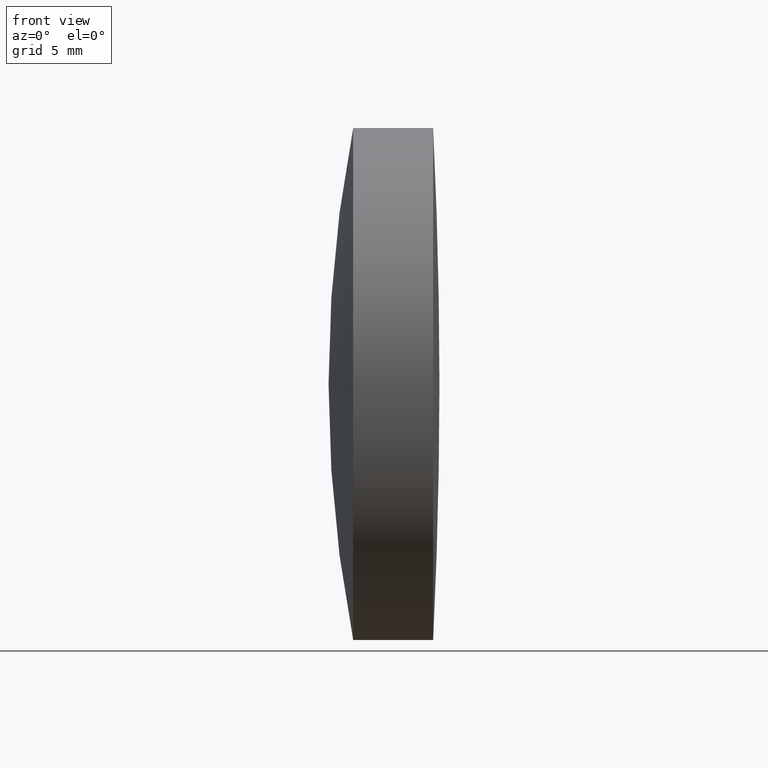
[diagram: clean part render]
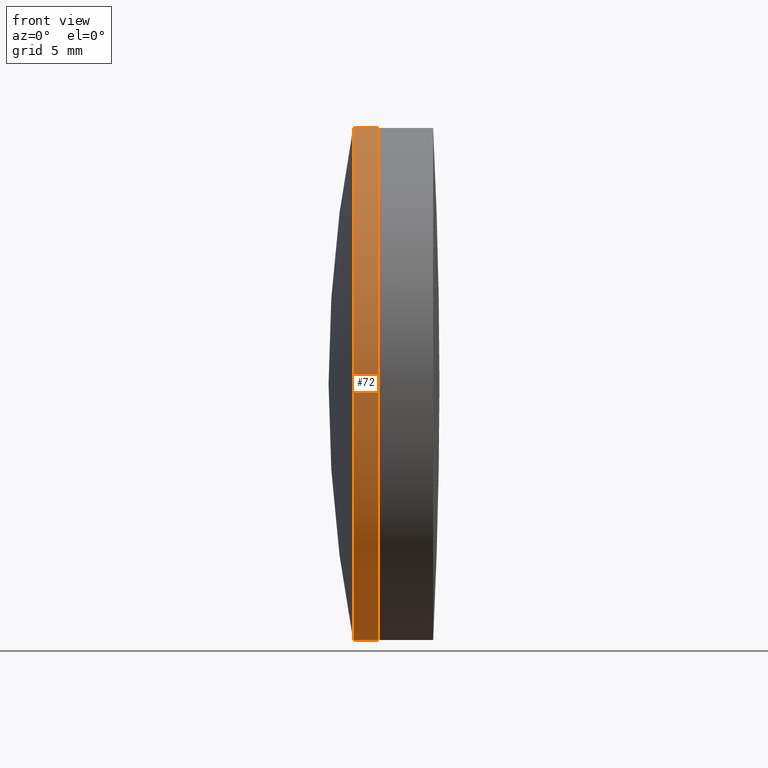
[diagram: same view with one face highlighted and labeled with its STEP entity id]
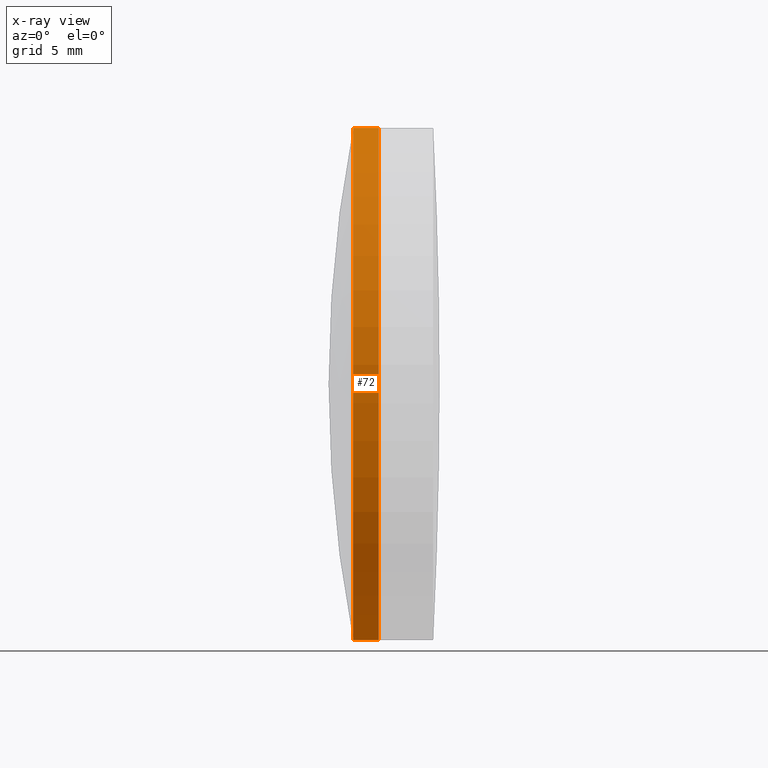
[diagram: x-ray of the same camera — body ghosted, the highlighted face saturated]
A machine part, front view. The second image highlights one B-rep face of the part: STEP entity #72.
The next image is the same camera in x-ray: the body ghosted, the highlighted face saturated — about 0% of this face is hidden behind the body in this view.
In plain terms, the highlighted cylindrical surface (partial cylindrical patch) has radius 12.7 mm, axis along (-1, -0, -0).
Its self-contained STEP definition (entity closure, byte-faithful):
#19 = CIRCLE ( 'NONE', #162, 12.70000000000000600 ) ;
#24 = DIRECTION ( 'NONE',  ( -1.000000000000000000, -0.0000000000000000000, -0.0000000000000000000 ) ) ;
#29 = ORIENTED_EDGE ( 'NONE', *, *, #202, .T. ) ;
#35 = CIRCLE ( 'NONE', #297, 12.70000000000000600 ) ;
#39 = CARTESIAN_POINT ( 'NONE',  ( 302.1767490561337600, 0.0000000000000000000, 12.70000000000000600 ) ) ;
#58 = DIRECTION ( 'NONE',  ( -1.000000000000000000, -0.0000000000000000000, -0.0000000000000000000 ) ) ;
#59 = CYLINDRICAL_SURFACE ( 'NONE', #130, 12.70000000000000600 ) ;
#72 = ADVANCED_FACE ( 'NONE', ( #171 ), #59, .T. ) ;
#79 = CARTESIAN_POINT ( 'NONE',  ( 302.1767490561337600, 1.555301434917139200E-015, -12.70000000000000600 ) ) ;
#86 = DIRECTION ( 'NONE',  ( -1.000000000000000000, -0.0000000000000000000, -0.0000000000000000000 ) ) ;
#95 = VECTOR ( 'NONE', #214, 1000.000000000000000 ) ;
#97 = EDGE_CURVE ( 'NONE', #321, #264, #211, .T. ) ;
#110 = CARTESIAN_POINT ( 'NONE',  ( 124.5233095260452400, 0.0000000000000000000, 12.70000000000000600 ) ) ;
#113 = EDGE_LOOP ( 'NONE', ( #259, #29, #310, #134 ) ) ;
#130 = AXIS2_PLACEMENT_3D ( 'NONE', #155, #239, #270 ) ;
#134 = ORIENTED_EDGE ( 'NONE', *, *, #263, .F. ) ;
#155 = CARTESIAN_POINT ( 'NONE',  ( 124.5233095260452400, 0.0000000000000000000, 0.0000000000000000000 ) ) ;
#162 = AXIS2_PLACEMENT_3D ( 'NONE', #248, #86, #280 ) ;
#166 = CARTESIAN_POINT ( 'NONE',  ( 300.9207308904956900, -1.555301434917137800E-015, 12.69999999999999900 ) ) ;
#171 = FACE_OUTER_BOUND ( 'NONE', #113, .T. ) ;
#187 = EDGE_CURVE ( 'NONE', #309, #201, #220, .T. ) ;
#192 = VECTOR ( 'NONE', #24, 1000.000000000000000 ) ;
#201 = VERTEX_POINT ( 'NONE', #166 ) ;
#202 = EDGE_CURVE ( 'NONE', #321, #309, #19, .T. ) ;
#211 = LINE ( 'NONE', #236, #192 ) ;
#214 = DIRECTION ( 'NONE',  ( -1.000000000000000000, -0.0000000000000000000, -0.0000000000000000000 ) ) ;
#220 = LINE ( 'NONE', #110, #95 ) ;
#221 = CARTESIAN_POINT ( 'NONE',  ( 300.9207308904956900, 0.0000000000000000000, 0.0000000000000000000 ) ) ;
#236 = CARTESIAN_POINT ( 'NONE',  ( 124.5233095260452400, 1.555301434917139200E-015, -12.70000000000000600 ) ) ;
#239 = DIRECTION ( 'NONE',  ( -1.000000000000000000, -0.0000000000000000000, -0.0000000000000000000 ) ) ;
#248 = CARTESIAN_POINT ( 'NONE',  ( 302.1767490561337600, 0.0000000000000000000, 0.0000000000000000000 ) ) ;
#251 = DIRECTION ( 'NONE',  ( 0.0000000000000000000, 0.0000000000000000000, 1.000000000000000000 ) ) ;
#259 = ORIENTED_EDGE ( 'NONE', *, *, #97, .F. ) ;
#263 = EDGE_CURVE ( 'NONE', #264, #201, #35, .T. ) ;
#264 = VERTEX_POINT ( 'NONE', #282 ) ;
#270 = DIRECTION ( 'NONE',  ( 0.0000000000000000000, 0.0000000000000000000, 1.000000000000000000 ) ) ;
#280 = DIRECTION ( 'NONE',  ( 0.0000000000000000000, 0.0000000000000000000, 1.000000000000000000 ) ) ;
#282 = CARTESIAN_POINT ( 'NONE',  ( 300.9207308904956900, 0.0000000000000000000, -12.69999999999999200 ) ) ;
#297 = AXIS2_PLACEMENT_3D ( 'NONE', #221, #58, #251 ) ;
#309 = VERTEX_POINT ( 'NONE', #39 ) ;
#310 = ORIENTED_EDGE ( 'NONE', *, *, #187, .T. ) ;
#321 = VERTEX_POINT ( 'NONE', #79 ) ;